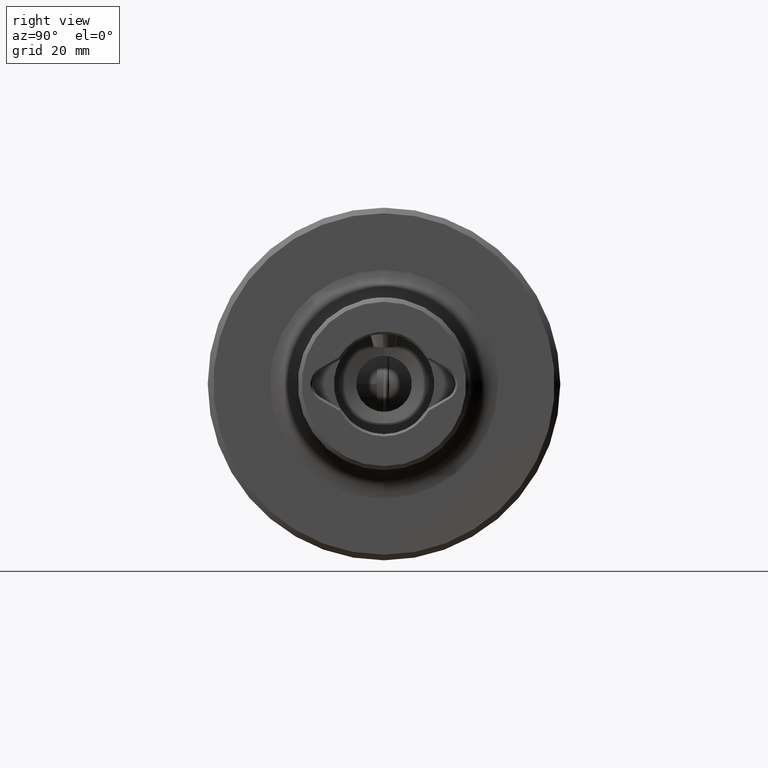
[diagram: clean part render]
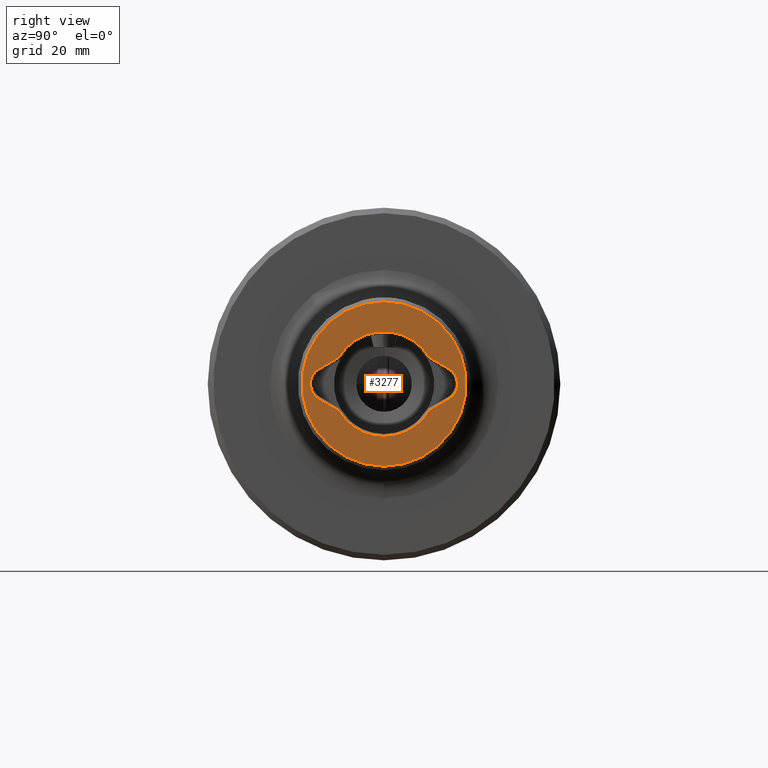
[diagram: same view with one face highlighted and labeled with its STEP entity id]
A machine part, right view. The second image highlights one B-rep face of the part: STEP entity #3277.
In plain terms, the highlighted planar face has unit normal (1, 0, 0).
Its self-contained STEP definition (entity closure, byte-faithful):
#138 = PLANE ( 'NONE',  #2286 ) ;
#146 = DIRECTION ( 'NONE',  ( 0.0000000000000000000, -0.8660254037844403700, 0.4999999999999970000 ) ) ;
#147 = CARTESIAN_POINT ( 'NONE',  ( 96.00000000000000000, 8.105836876121760100, 4.759769798814285300 ) ) ;
#282 = DIRECTION ( 'NONE',  ( -1.000000000000000000, -0.0000000000000000000, -0.0000000000000000000 ) ) ;
#350 = VERTEX_POINT ( 'NONE', #2332 ) ;
#420 = CARTESIAN_POINT ( 'NONE',  ( 96.00000000000000000, -11.62500000000002000, -2.727980021920982000 ) ) ;
#478 = CARTESIAN_POINT ( 'NONE',  ( 96.00000000000000000, 0.0000000000000000000, 0.0000000000000000000 ) ) ;
#495 = AXIS2_PLACEMENT_3D ( 'NONE', #618, #4707, #3034 ) ;
#496 = DIRECTION ( 'NONE',  ( 1.000000000000000000, 0.0000000000000000000, 0.0000000000000000000 ) ) ;
#542 = VERTEX_POINT ( 'NONE', #1696 ) ;
#561 = VERTEX_POINT ( 'NONE', #1427 ) ;
#578 = VERTEX_POINT ( 'NONE', #4134 ) ;
#618 = CARTESIAN_POINT ( 'NONE',  ( 96.00000000000000000, 0.0000000000000000000, 0.0000000000000000000 ) ) ;
#723 = CIRCLE ( 'NONE', #4283, 9.399999999999998600 ) ;
#825 = AXIS2_PLACEMENT_3D ( 'NONE', #2983, #1416, #4212 ) ;
#891 = DIRECTION ( 'NONE',  ( 0.0000000000000000000, 0.0000000000000000000, -1.000000000000000000 ) ) ;
#1031 = VECTOR ( 'NONE', #4643, 1000.000000000000100 ) ;
#1095 = DIRECTION ( 'NONE',  ( 0.0000000000000000000, 0.0000000000000000000, -1.000000000000000000 ) ) ;
#1147 = VERTEX_POINT ( 'NONE', #5013 ) ;
#1221 = VERTEX_POINT ( 'NONE', #2658 ) ;
#1300 = VECTOR ( 'NONE', #4859, 1000.000000000000100 ) ;
#1398 = EDGE_CURVE ( 'NONE', #578, #4654, #3522, .T. ) ;
#1416 = DIRECTION ( 'NONE',  ( -1.000000000000000000, -0.0000000000000000000, -0.0000000000000000000 ) ) ;
#1427 = CARTESIAN_POINT ( 'NONE',  ( 96.00000000000000000, 8.105836876121772500, -4.759769798814270200 ) ) ;
#1457 = DIRECTION ( 'NONE',  ( 0.0000000000000000000, 0.0000000000000000000, 1.000000000000000000 ) ) ;
#1494 = DIRECTION ( 'NONE',  ( 0.0000000000000000000, 0.0000000000000000000, -1.000000000000000000 ) ) ;
#1676 = EDGE_CURVE ( 'NONE', #2329, #561, #2886, .T. ) ;
#1696 = CARTESIAN_POINT ( 'NONE',  ( 96.00000000000000000, 0.0000000000000000000, 14.75000000000000000 ) ) ;
#1844 = AXIS2_PLACEMENT_3D ( 'NONE', #3041, #282, #1095 ) ;
#1876 = AXIS2_PLACEMENT_3D ( 'NONE', #3254, #2038, #3643 ) ;
#2017 = EDGE_CURVE ( 'NONE', #4654, #1147, #3760, .T. ) ;
#2038 = DIRECTION ( 'NONE',  ( -1.000000000000000000, -0.0000000000000000000, -0.0000000000000000000 ) ) ;
#2081 = VECTOR ( 'NONE', #5061, 1000.000000000000100 ) ;
#2235 = ORIENTED_EDGE ( 'NONE', *, *, #1398, .T. ) ;
#2286 = AXIS2_PLACEMENT_3D ( 'NONE', #478, #496, #891 ) ;
#2310 = DIRECTION ( 'NONE',  ( -1.000000000000000000, -0.0000000000000000000, -0.0000000000000000000 ) ) ;
#2329 = VERTEX_POINT ( 'NONE', #3851 ) ;
#2332 = CARTESIAN_POINT ( 'NONE',  ( 96.00000000000000000, 11.62500000000001200, 2.727980021920986000 ) ) ;
#2334 = ORIENTED_EDGE ( 'NONE', *, *, #4364, .T. ) ;
#2474 = VERTEX_POINT ( 'NONE', #4390 ) ;
#2641 = CARTESIAN_POINT ( 'NONE',  ( 96.00000000000000000, 0.0000000000000000000, 0.0000000000000000000 ) ) ;
#2643 = DIRECTION ( 'NONE',  ( 0.0000000000000000000, 1.776356839400250500E-015, -1.000000000000000000 ) ) ;
#2658 = CARTESIAN_POINT ( 'NONE',  ( 96.00000000000000000, 0.0000000000000000000, -9.400000000000000400 ) ) ;
#2663 = CARTESIAN_POINT ( 'NONE',  ( 96.00000000000000000, 0.0000000000000000000, 0.0000000000000000000 ) ) ;
#2727 = EDGE_CURVE ( 'NONE', #350, #2329, #3943, .T. ) ;
#2754 = EDGE_CURVE ( 'NONE', #542, #2474, #3821, .T. ) ;
#2809 = CIRCLE ( 'NONE', #825, 9.400000000000000400 ) ;
#2825 = EDGE_LOOP ( 'NONE', ( #4773, #3022 ) ) ;
#2832 = VECTOR ( 'NONE', #146, 1000.000000000000000 ) ;
#2886 = LINE ( 'NONE', #4225, #2081 ) ;
#2983 = CARTESIAN_POINT ( 'NONE',  ( 96.00000000000000000, 0.0000000000000000000, 0.0000000000000000000 ) ) ;
#2990 = CARTESIAN_POINT ( 'NONE',  ( 96.00000000000000000, -11.62500000000002000, -2.727980021920982000 ) ) ;
#3022 = ORIENTED_EDGE ( 'NONE', *, *, #4443, .F. ) ;
#3026 = EDGE_CURVE ( 'NONE', #1147, #5020, #4754, .T. ) ;
#3031 = AXIS2_PLACEMENT_3D ( 'NONE', #2663, #4717, #1494 ) ;
#3034 = DIRECTION ( 'NONE',  ( 0.0000000000000000000, 0.0000000000000000000, 1.000000000000000000 ) ) ;
#3035 = EDGE_LOOP ( 'NONE', ( #3781, #3403, #4986, #2334, #5043, #3659, #3521, #5173, #2235 ) ) ;
#3041 = CARTESIAN_POINT ( 'NONE',  ( 96.00000000000000000, 10.05000000000001000, -3.469446951953614200E-015 ) ) ;
#3254 = CARTESIAN_POINT ( 'NONE',  ( 96.00000000000000000, -10.05000000000002400, -6.938893903907228400E-015 ) ) ;
#3268 = FACE_OUTER_BOUND ( 'NONE', #2825, .T. ) ;
#3277 = ADVANCED_FACE ( 'NONE', ( #5133, #3268 ), #138, .T. ) ;
#3303 = EDGE_CURVE ( 'NONE', #561, #1221, #2809, .T. ) ;
#3403 = ORIENTED_EDGE ( 'NONE', *, *, #3026, .T. ) ;
#3521 = ORIENTED_EDGE ( 'NONE', *, *, #3303, .T. ) ;
#3522 = LINE ( 'NONE', #2990, #2832 ) ;
#3643 = DIRECTION ( 'NONE',  ( 0.0000000000000000000, 0.0000000000000000000, -1.000000000000000000 ) ) ;
#3659 = ORIENTED_EDGE ( 'NONE', *, *, #1676, .T. ) ;
#3760 = CIRCLE ( 'NONE', #1876, 3.149999999999987900 ) ;
#3781 = ORIENTED_EDGE ( 'NONE', *, *, #2017, .T. ) ;
#3798 = DIRECTION ( 'NONE',  ( -1.000000000000000000, -0.0000000000000000000, -0.0000000000000000000 ) ) ;
#3821 = CIRCLE ( 'NONE', #4362, 14.75000000000000000 ) ;
#3851 = CARTESIAN_POINT ( 'NONE',  ( 96.00000000000000000, 11.62500000000000700, -2.727980021920978900 ) ) ;
#3943 = CIRCLE ( 'NONE', #1844, 3.149999999999992800 ) ;
#4037 = CARTESIAN_POINT ( 'NONE',  ( 96.00000000000000000, -8.013315997980555500, 4.813186752714764300 ) ) ;
#4116 = CIRCLE ( 'NONE', #495, 14.75000000000000000 ) ;
#4134 = CARTESIAN_POINT ( 'NONE',  ( 96.00000000000000000, -8.105836876121769000, -4.759769798814277300 ) ) ;
#4212 = DIRECTION ( 'NONE',  ( 0.0000000000000000000, 1.776356839400250500E-015, -1.000000000000000000 ) ) ;
#4221 = CARTESIAN_POINT ( 'NONE',  ( 96.00000000000000000, 0.0000000000000000000, 0.0000000000000000000 ) ) ;
#4225 = CARTESIAN_POINT ( 'NONE',  ( 96.00000000000000000, 8.013315997980557300, -4.813186752714760700 ) ) ;
#4283 = AXIS2_PLACEMENT_3D ( 'NONE', #4221, #3798, #2643 ) ;
#4362 = AXIS2_PLACEMENT_3D ( 'NONE', #2641, #2310, #1457 ) ;
#4364 = EDGE_CURVE ( 'NONE', #4813, #350, #4746, .T. ) ;
#4390 = CARTESIAN_POINT ( 'NONE',  ( 96.00000000000000000, 1.840031815718897700E-015, -14.75000000000000000 ) ) ;
#4443 = EDGE_CURVE ( 'NONE', #2474, #542, #4116, .T. ) ;
#4553 = CARTESIAN_POINT ( 'NONE',  ( 96.00000000000000000, 11.62500000000001200, 2.727980021920986400 ) ) ;
#4555 = CIRCLE ( 'NONE', #3031, 9.400000000000000400 ) ;
#4643 = DIRECTION ( 'NONE',  ( 0.0000000000000000000, 0.8660254037844399300, -0.4999999999999976700 ) ) ;
#4654 = VERTEX_POINT ( 'NONE', #420 ) ;
#4707 = DIRECTION ( 'NONE',  ( -1.000000000000000000, -0.0000000000000000000, -0.0000000000000000000 ) ) ;
#4717 = DIRECTION ( 'NONE',  ( -1.000000000000000000, -0.0000000000000000000, -0.0000000000000000000 ) ) ;
#4746 = LINE ( 'NONE', #4553, #1031 ) ;
#4754 = LINE ( 'NONE', #4037, #1300 ) ;
#4773 = ORIENTED_EDGE ( 'NONE', *, *, #2754, .F. ) ;
#4813 = VERTEX_POINT ( 'NONE', #147 ) ;
#4859 = DIRECTION ( 'NONE',  ( 0.0000000000000000000, 0.8660254037844382600, 0.5000000000000005600 ) ) ;
#4896 = EDGE_CURVE ( 'NONE', #5020, #4813, #723, .T. ) ;
#4960 = EDGE_CURVE ( 'NONE', #1221, #578, #4555, .T. ) ;
#4986 = ORIENTED_EDGE ( 'NONE', *, *, #4896, .T. ) ;
#5013 = CARTESIAN_POINT ( 'NONE',  ( 96.00000000000000000, -11.62500000000001800, 2.727980021920964700 ) ) ;
#5020 = VERTEX_POINT ( 'NONE', #5094 ) ;
#5043 = ORIENTED_EDGE ( 'NONE', *, *, #2727, .T. ) ;
#5061 = DIRECTION ( 'NONE',  ( 0.0000000000000000000, -0.8660254037844382600, -0.5000000000000006700 ) ) ;
#5094 = CARTESIAN_POINT ( 'NONE',  ( 96.00000000000000000, -8.105836876121767200, 4.759769798814273800 ) ) ;
#5133 = FACE_BOUND ( 'NONE', #3035, .T. ) ;
#5173 = ORIENTED_EDGE ( 'NONE', *, *, #4960, .T. ) ;